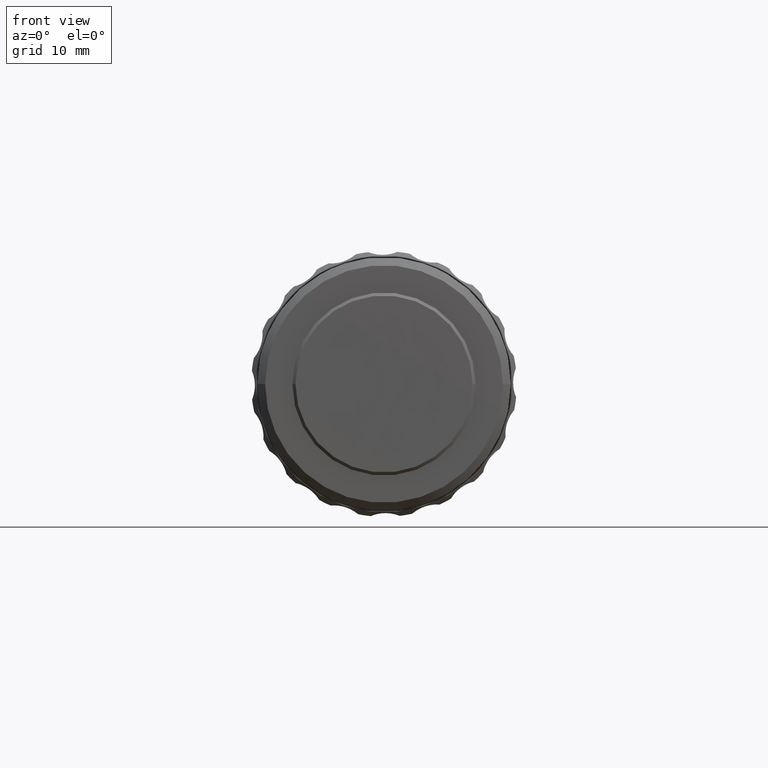
[diagram: clean part render]
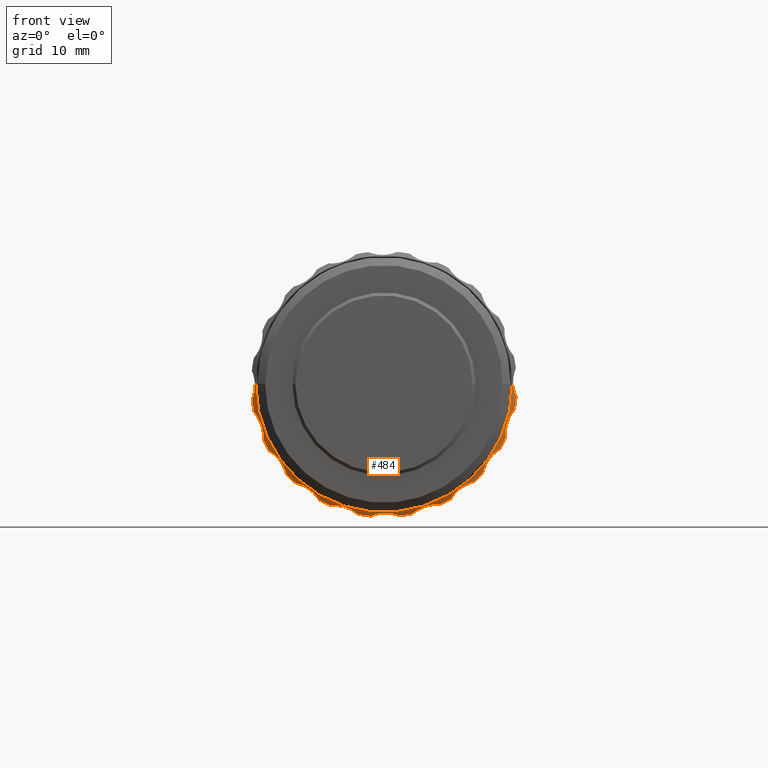
[diagram: same view with one face highlighted and labeled with its STEP entity id]
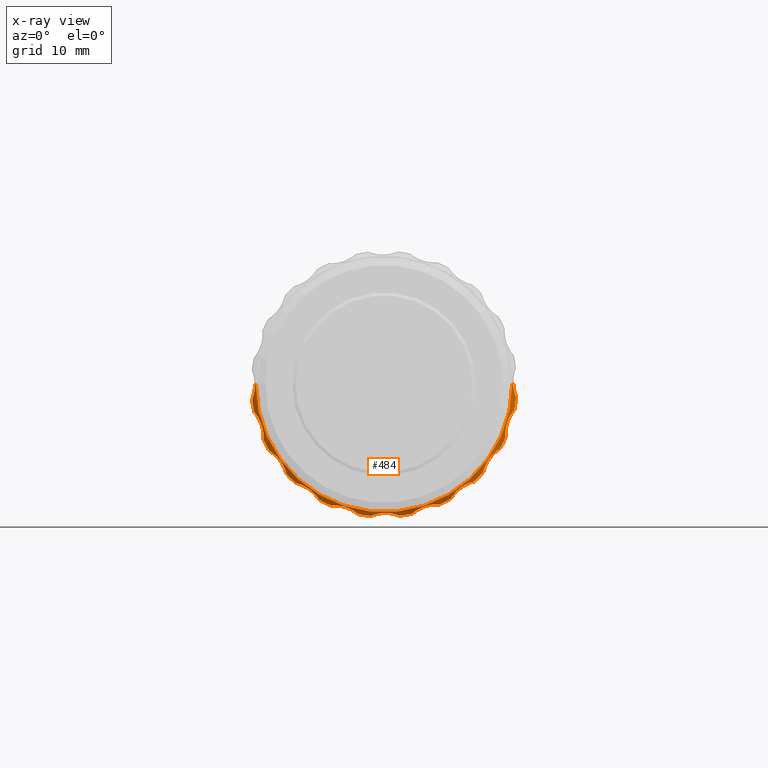
[diagram: x-ray of the same camera — body ghosted, the highlighted face saturated]
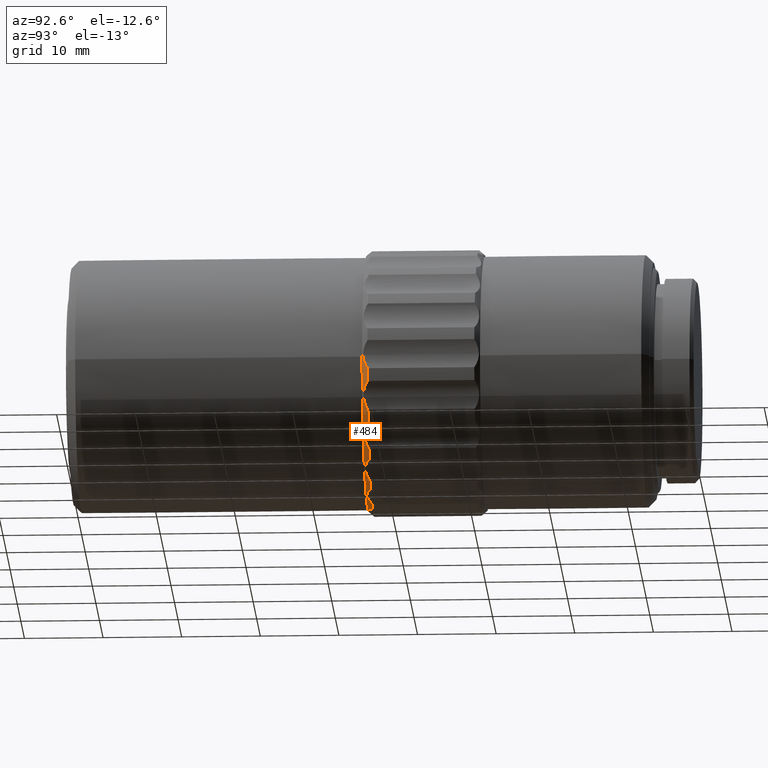
[diagram: same view with one face highlighted and labeled with its STEP entity id]
A machine part, front view. The second image highlights one B-rep face of the part: STEP entity #484.
The next image is the same camera in x-ray: the body ghosted, the highlighted face saturated — about 0% of this face is hidden behind the body in this view.
A second angle (auxiliary view) of the same face is appended — the face is thin or edge-on in the first view.
In plain terms, the highlighted conical surface has half-angle 39.278 deg.
Its self-contained STEP definition (entity closure, byte-faithful):
#3 = B_SPLINE_CURVE_WITH_KNOTS ( 'NONE', 3,
 ( #2066, #1616, #2052, #2725 ),
 .UNSPECIFIED., .F., .F.,
 ( 4, 4 ),
 ( 0.003489259547787179096, 0.003967775136804206626 ),
 .UNSPECIFIED. ) ;
#12 = DIRECTION ( 'NONE',  ( 9.536353044915926586E-06, 0.9999999999545290397, -0.000000000000000000 ) ) ;
#13 = CARTESIAN_POINT ( 'NONE',  ( 1343.003373764331855, 987.3260583072977852, -16.78831324289142302 ) ) ;
#22 = VERTEX_POINT ( 'NONE', #384 ) ;
#31 = ORIENTED_EDGE ( 'NONE', *, *, #1434, .F. ) ;
#37 = CARTESIAN_POINT ( 'NONE',  ( 1328.383016225962592, 986.6262031915217676, -1.347618331208670883E-09 ) ) ;
#51 = DIRECTION ( 'NONE',  ( -0.9999999999545290397, 9.536353044709597831E-06, 0.000000000000000000 ) ) ;
#66 = AXIS2_PLACEMENT_3D ( 'NONE', #2667, #2034, #51 ) ;
#89 = VERTEX_POINT ( 'NONE', #2845 ) ;
#94 = CARTESIAN_POINT ( 'NONE',  ( 1329.360300571564949, 987.3261884124603966, -7.063553779491797968 ) ) ;
#98 = CARTESIAN_POINT ( 'NONE',  ( 1361.180054231900385, 986.8878305635548713, -0.7487161181173951352 ) ) ;
#112 = CARTESIAN_POINT ( 'NONE',  ( 1361.366660323947144, 987.1692579168167185, -1.434701123741485063 ) ) ;
#120 = CARTESIAN_POINT ( 'NONE',  ( 1344.682622373049298, 987.3260422933902873, -1.347618331208670883E-09 ) ) ;
#127 = AXIS2_PLACEMENT_3D ( 'NONE', #729, #702, #2001 ) ;
#131 = CARTESIAN_POINT ( 'NONE',  ( 1343.551038075614088, 987.0154436543298289, -16.58231825963666850 ) ) ;
#134 = CARTESIAN_POINT ( 'NONE',  ( 1359.403392205781074, 987.3259019109319752, -8.244165993027181116 ) ) ;
#135 = CARTESIAN_POINT ( 'NONE',  ( 1361.098714545652228, 986.7683360566226156, -0.1534100661868615101 ) ) ;
#152 = CARTESIAN_POINT ( 'NONE',  ( 1329.231697122623018, 986.7575281358547272, -5.529102730537641008 ) ) ;
#160 = CARTESIAN_POINT ( 'NONE',  ( 1336.438456381744572, 987.3261209126677613, -14.72076983474860690 ) ) ;
#175 = CARTESIAN_POINT ( 'NONE',  ( 1358.920383795255930, 987.0150307511295296, -8.575150046817855198 ) ) ;
#180 = ORIENTED_EDGE ( 'NONE', *, *, #505, .F. ) ;
#184 = CARTESIAN_POINT ( 'NONE',  ( 1341.171003137353637, 987.1568039596038489, -16.36297471690903649 ) ) ;
#199 = CARTESIAN_POINT ( 'NONE',  ( 1341.390922634196613, 987.3260736842011056, -16.54787147216184451 ) ) ;
#213 = VECTOR ( 'NONE', #1508, 1000.000000000000000 ) ;
#222 = CARTESIAN_POINT ( 'NONE',  ( 1344.682622373049298, 987.3260422933902873, -1.347618331208670883E-09 ) ) ;
#241 = CARTESIAN_POINT ( 'NONE',  ( 1360.359569228805867, 986.7552170746745333, -4.836314371760460418 ) ) ;
#257 = ORIENTED_EDGE ( 'NONE', *, *, #2357, .F. ) ;
#259 = DIRECTION ( 'NONE',  ( -0.9999999999545290397, 9.536353044709597831E-06, 0.000000000000000000 ) ) ;
#273 = ORIENTED_EDGE ( 'NONE', *, *, #1242, .F. ) ;
#277 = CARTESIAN_POINT ( 'NONE',  ( 1331.860345375748466, 986.8125576277218443, -10.31277807814915803 ) ) ;
#328 = DIRECTION ( 'NONE',  ( 9.536353044915926586E-06, 0.9999999999545290397, -0.000000000000000000 ) ) ;
#332 = DIRECTION ( 'NONE',  ( -0.9999999999545290397, 9.536353044709597831E-06, 0.000000000000000000 ) ) ;
#334 = CARTESIAN_POINT ( 'NONE',  ( 1348.273436139540308, 987.3260080501224820, -16.48555106521985181 ) ) ;
#339 = CARTESIAN_POINT ( 'NONE',  ( 1336.107476656255812, 987.0152523784178129, -14.23777278966668192 ) ) ;
#342 = EDGE_CURVE ( 'NONE', #426, #1531, #3, .T. ) ;
#368 = VERTEX_POINT ( 'NONE', #37 ) ;
#372 = CARTESIAN_POINT ( 'NONE',  ( 1328.168125738299977, 986.9427331720864913, -1.217442321723410048 ) ) ;
#374 = AXIS2_PLACEMENT_3D ( 'NONE', #120, #328, #2095 ) ;
#379 = B_SPLINE_CURVE_WITH_KNOTS ( 'NONE', 3,
 ( #2502, #135, #2087, #2075, #98, #1020, #112, #995 ),
 .UNSPECIFIED., .F., .F.,
 ( 4, 2, 2, 4 ),
 ( 0.002132695306749530714, 0.002591466401335903915, 0.003050237495922277116, 0.003967779685095165765 ),
 .UNSPECIFIED. ) ;
#381 = CARTESIAN_POINT ( 'NONE',  ( 1336.286436346562596, 987.1568501784311138, -14.47696368615069140 ) ) ;
#384 = CARTESIAN_POINT ( 'NONE',  ( 1359.403392205781074, 987.3259019109319752, -8.244165993027181116 ) ) ;
#394 = CARTESIAN_POINT ( 'NONE',  ( 1357.277615524593784, 987.3259221830890056, -11.22646359788836001 ) ) ;
#421 = CARTESIAN_POINT ( 'NONE',  ( 1328.128884045932182, 987.0063746107667839, -1.380522343862485624 ) ) ;
#426 = VERTEX_POINT ( 'NONE', #795 ) ;
#453 = AXIS2_PLACEMENT_3D ( 'NONE', #1220, #1005, #2553 ) ;
#459 = CARTESIAN_POINT ( 'NONE',  ( 1354.715702748854028, 986.7572839311060306, -12.98611048708691840 ) ) ;
#461 = CIRCLE ( 'NONE', #698, 16.87208752307592263 ) ;
#466 = CARTESIAN_POINT ( 'NONE',  ( 1331.298405482498765, 986.7573345383480046, -9.495268198041982188 ) ) ;
#480 = CARTESIAN_POINT ( 'NONE',  ( 1344.682622373049298, 987.3260422933902873, -1.347618331208670883E-09 ) ) ;
#484 = ADVANCED_FACE ( 'NONE', ( #2548 ), #2578, .T. ) ;
#490 = B_SPLINE_CURVE_WITH_KNOTS ( 'NONE', 3,
 ( #687, #674, #2005, #277, #2255, #466, #1362, #1571, #656, #1095 ),
 .UNSPECIFIED., .F., .F.,
 ( 4, 2, 2, 2, 4 ),
 ( 9.327381203600247724E-07, 0.0009925017120032380690, 0.001984070685886115803, 0.002975639659768993753, 0.003967208633651872138 ),
 .UNSPECIFIED. ) ;
#505 = EDGE_CURVE ( 'NONE', #1152, #2049, #2065, .T. ) ;
#518 = CARTESIAN_POINT ( 'NONE',  ( 1329.376430616896641, 987.0153177561819575, -6.478260974581093734 ) ) ;
#527 = CIRCLE ( 'NONE', #1166, 16.87208752307592263 ) ;
#533 = CARTESIAN_POINT ( 'NONE',  ( 1329.380619194500468, 987.1569154964095105, -6.776955364573026941 ) ) ;
#542 = ORIENTED_EDGE ( 'NONE', *, *, #1139, .T. ) ;
#552 = DIRECTION ( 'NONE',  ( 9.536353044915926586E-06, 0.9999999999545290397, -0.000000000000000000 ) ) ;
#562 = CARTESIAN_POINT ( 'NONE',  ( 1343.003373764331855, 987.3260583072977852, -16.78831324289142302 ) ) ;
#565 = CARTESIAN_POINT ( 'NONE',  ( 1334.601554761373109, 986.8131578255171235, -13.00586263102062112 ) ) ;
#570 = CARTESIAN_POINT ( 'NONE',  ( 1348.730638280801486, 987.0153950885958238, -16.12040075429935726 ) ) ;
#571 = VERTEX_POINT ( 'NONE', #1928 ) ;
#575 = B_SPLINE_CURVE_WITH_KNOTS ( 'NONE', 3,
 ( #160, #381, #339, #1662, #589, #1905, #565, #1261, #2110, #825 ),
 .UNSPECIFIED., .F., .F.,
 ( 4, 2, 2, 2, 4 ),
 ( 1.009912317079941867E-06, 0.0009925797777089614103, 0.001984149643100843134, 0.002975719508492724423, 0.003967289373884606146 ),
 .UNSPECIFIED. ) ;
#583 = CARTESIAN_POINT ( 'NONE',  ( 1350.211719881572435, 986.7573270966613563, -15.45091911597353374 ) ) ;
#585 = CARTESIAN_POINT ( 'NONE',  ( 1328.272691153960068, 986.7611028646811064, -1.347626919665150214E-09 ) ) ;
#589 = CARTESIAN_POINT ( 'NONE',  ( 1335.432485644747885, 986.7574687245626137, -13.55496093032529004 ) ) ;
#597 = CARTESIAN_POINT ( 'NONE',  ( 1339.113986763431512, 986.8131155041849070, -15.48452966558741828 ) ) ;
#600 = CARTESIAN_POINT ( 'NONE',  ( 1345.166509773662483, 986.7573754466903893, -16.40328422754391724 ) ) ;
#611 = LINE ( 'NONE', #1711, #213 ) ;
#612 = CIRCLE ( 'NONE', #374, 16.87208752307592263 ) ;
#627 = CARTESIAN_POINT ( 'NONE',  ( 1338.482205226863925, 987.0154911807887856, -15.42104398317729874 ) ) ;
#642 = VECTOR ( 'NONE', #1609, 1000.000000000000000 ) ;
#656 = CARTESIAN_POINT ( 'NONE',  ( 1330.360062834469545, 987.1569126032092072, -8.656955702435499944 ) ) ;
#674 = CARTESIAN_POINT ( 'NONE',  ( 1332.223746929251092, 987.1568886113703911, -11.17384646736683074 ) ) ;
#680 = CARTESIAN_POINT ( 'NONE',  ( 1353.192004644613917, 987.3259611449167323, -14.56906828782804553 ) ) ;
#682 = ORIENTED_EDGE ( 'NONE', *, *, #690, .F. ) ;
#687 = CARTESIAN_POINT ( 'NONE',  ( 1332.292986537004253, 987.3261604453316522, -11.45269668040825195 ) ) ;
#690 = EDGE_CURVE ( 'NONE', #1249, #2256, #461, .T. ) ;
#696 = CARTESIAN_POINT ( 'NONE',  ( 1344.682622373049298, 987.3260422933902873, -1.347618331208670883E-09 ) ) ;
#698 = AXIS2_PLACEMENT_3D ( 'NONE', #696, #2044, #1122 ) ;
#702 = DIRECTION ( 'NONE',  ( 9.536353044915926586E-06, 0.9999999999545290397, -0.000000000000000000 ) ) ;
#711 = CARTESIAN_POINT ( 'NONE',  ( 1327.927470220947271, 987.3262020764366298, -1.982981020096498570 ) ) ;
#712 = ORIENTED_EDGE ( 'NONE', *, *, #1697, .F. ) ;
#720 = EDGE_CURVE ( 'NONE', #1706, #932, #1334, .T. ) ;
#725 = DIRECTION ( 'NONE',  ( -0.9999999999545290397, 9.536353044709597831E-06, 0.000000000000000000 ) ) ;
#729 = CARTESIAN_POINT ( 'NONE',  ( 1344.682615697654455, 986.6260477527865760, -1.347618331208670883E-09 ) ) ;
#734 = CARTESIAN_POINT ( 'NONE',  ( 1336.438456381744572, 987.3261209126677613, -14.72076983474860690 ) ) ;
#736 = CIRCLE ( 'NONE', #1231, 16.87208752307592263 ) ;
#751 = AXIS2_PLACEMENT_3D ( 'NONE', #1226, #2753, #988 ) ;
#752 = EDGE_CURVE ( 'NONE', #1766, #996, #1873, .T. ) ;
#795 = CARTESIAN_POINT ( 'NONE',  ( 1360.111504372713171, 987.1018801498815947, -6.361459841903545076 ) ) ;
#803 = CARTESIAN_POINT ( 'NONE',  ( 1333.456158777019027, 987.3261493529106474, -12.59499315346491777 ) ) ;
#825 = CARTESIAN_POINT ( 'NONE',  ( 1333.456158777019027, 987.3261493529106474, -12.59499315346491777 ) ) ;
#828 = B_SPLINE_CURVE_WITH_KNOTS ( 'NONE', 3,
 ( #904, #1339, #2247, #2027, #2216, #1815, #2691, #241, #1123, #1997, #1786, #1842, #2512, #965, #1018, #1458 ),
 .UNSPECIFIED., .F., .F.,
 ( 4, 2, 2, 2, 2, 2, 2, 4 ),
 ( 1.471397044919114264E-06, 0.0008734184347307200015, 0.001309391953573463274, 0.001745365472416206438, 0.002181338991258949169, 0.002617312510101692767, 0.003053286028944435498, 0.003489259547787179096 ),
 .UNSPECIFIED. ) ;
#829 = CARTESIAN_POINT ( 'NONE',  ( 1354.995396361395251, 986.8123377744556137, -12.82227212075760825 ) ) ;
#836 = CARTESIAN_POINT ( 'NONE',  ( 1328.251732886690661, 986.8042595238923695, -0.7083460147921863959 ) ) ;
#852 = ORIENTED_EDGE ( 'NONE', *, *, #2308, .F. ) ;
#857 = ORIENTED_EDGE ( 'NONE', *, *, #2248, .F. ) ;
#862 = AXIS2_PLACEMENT_3D ( 'NONE', #480, #2032, #259 ) ;
#904 = CARTESIAN_POINT ( 'NONE',  ( 1361.230493843110708, 987.3258844870458688, -3.291699740351489822 ) ) ;
#910 = AXIS2_PLACEMENT_3D ( 'NONE', #222, #12, #2212 ) ;
#925 = LINE ( 'NONE', #1830, #642 ) ;
#932 = VERTEX_POINT ( 'NONE', #1937 ) ;
#940 = B_SPLINE_CURVE_WITH_KNOTS ( 'NONE', 3,
 ( #1320, #2550, #2331, #421, #372, #1915, #836, #1944, #2577, #585 ),
 .UNSPECIFIED., .F., .F.,
 ( 4, 2, 2, 2, 4 ),
 ( 8.514621640060353123E-07, 0.0005336551467486908484, 0.001066458831333375783, 0.001599262515918060609, 0.002132066200502745219 ),
 .UNSPECIFIED. ) ;
#960 = EDGE_CURVE ( 'NONE', #1211, #1497, #1832, .T. ) ;
#965 = CARTESIAN_POINT ( 'NONE',  ( 1360.116915459094798, 986.9856873487743769, -6.095567953888948232 ) ) ;
#978 = CARTESIAN_POINT ( 'NONE',  ( 1344.497396697179283, 986.7572092855529036, -16.40923364181766431 ) ) ;
#985 = CARTESIAN_POINT ( 'NONE',  ( 1344.682622373049298, 987.3260422933902873, -1.347618331208670883E-09 ) ) ;
#988 = DIRECTION ( 'NONE',  ( -0.9999999999545290397, 9.536353044709597831E-06, 0.000000000000000000 ) ) ;
#995 = CARTESIAN_POINT ( 'NONE',  ( 1361.470935613829624, 987.3258821941082033, -1.679248610141278686 ) ) ;
#996 = VERTEX_POINT ( 'NONE', #13 ) ;
#1005 = DIRECTION ( 'NONE',  ( 9.536353044915926586E-06, 0.9999999999545290397, -0.000000000000000000 ) ) ;
#1018 = CARTESIAN_POINT ( 'NONE',  ( 1360.111503788045638, 987.0405708255335639, -6.229916568731749926 ) ) ;
#1020 = CARTESIAN_POINT ( 'NONE',  ( 1361.279051081359967, 987.0366489472307876, -1.173723834777427033 ) ) ;
#1047 = CARTESIAN_POINT ( 'NONE',  ( 1355.573672416084719, 987.0150632692193540, -12.55516285468781312 ) ) ;
#1095 = CARTESIAN_POINT ( 'NONE',  ( 1330.113554087230568, 987.3261812291691513, -8.509382273298479404 ) ) ;
#1097 = EDGE_CURVE ( 'NONE', #2572, #368, #2607, .T. ) ;
#1122 = DIRECTION ( 'NONE',  ( -0.9999999999545290397, 9.536353044709597831E-06, 0.000000000000000000 ) ) ;
#1123 = CARTESIAN_POINT ( 'NONE',  ( 1360.314349882278520, 986.7540939835621430, -4.977528649041003561 ) ) ;
#1124 = EDGE_CURVE ( 'NONE', #2227, #2467, #2752, .T. ) ;
#1139 = EDGE_CURVE ( 'NONE', #368, #89, #925, .T. ) ;
#1152 = VERTEX_POINT ( 'NONE', #2707 ) ;
#1160 = CARTESIAN_POINT ( 'NONE',  ( 1330.113554087230568, 987.3261812291691513, -8.509382273298479404 ) ) ;
#1165 = ORIENTED_EDGE ( 'NONE', *, *, #1612, .F. ) ;
#1166 = AXIS2_PLACEMENT_3D ( 'NONE', #2073, #552, #1869 ) ;
#1171 = CIRCLE ( 'NONE', #66, 16.87208752307592263 ) ;
#1181 = B_SPLINE_CURVE_WITH_KNOTS ( 'NONE', 3,
 ( #199, #184, #2563, #2384, #1957, #1480, #597, #627, #1468, #2356 ),
 .UNSPECIFIED., .F., .F.,
 ( 4, 2, 2, 2, 4 ),
 ( 1.102106901683554048E-06, 0.0009926730868204398494, 0.001984244066739196226, 0.002975815046657952819, 0.003967386026576709412 ),
 .UNSPECIFIED. ) ;
#1187 = ORIENTED_EDGE ( 'NONE', *, *, #2282, .F. ) ;
#1189 = ORIENTED_EDGE ( 'NONE', *, *, #1645, .F. ) ;
#1193 = CARTESIAN_POINT ( 'NONE',  ( 1328.882213950297228, 986.8132114258821730, -4.596467324283610267 ) ) ;
#1205 = CARTESIAN_POINT ( 'NONE',  ( 1328.562222746065800, 987.0155841886484041, -4.048024541126191700 ) ) ;
#1211 = VERTEX_POINT ( 'NONE', #2543 ) ;
#1220 = CARTESIAN_POINT ( 'NONE',  ( 1344.682622373049298, 987.3260422933902873, -1.347618331208670883E-09 ) ) ;
#1226 = CARTESIAN_POINT ( 'NONE',  ( 1344.682622373049298, 987.3260422933902873, -1.347618331208670883E-09 ) ) ;
#1227 = ORIENTED_EDGE ( 'NONE', *, *, #2696, .F. ) ;
#1231 = AXIS2_PLACEMENT_3D ( 'NONE', #2614, #1951, #1324 ) ;
#1242 = EDGE_CURVE ( 'NONE', #2295, #1706, #379, .T. ) ;
#1249 = VERTEX_POINT ( 'NONE', #803 ) ;
#1261 = CARTESIAN_POINT ( 'NONE',  ( 1334.020311905042263, 987.0155330157471099, -12.75025149645843925 ) ) ;
#1275 = CARTESIAN_POINT ( 'NONE',  ( 1361.092542814230910, 986.7607898829899113, -1.347624554440093096E-09 ) ) ;
#1281 = CARTESIAN_POINT ( 'NONE',  ( 1329.360300571564949, 987.3261884124603966, -7.063553779491797968 ) ) ;
#1291 = CARTESIAN_POINT ( 'NONE',  ( 1353.936699501743078, 986.8129764079568531, -13.60670174686153899 ) ) ;
#1304 = ORIENTED_EDGE ( 'NONE', *, *, #1097, .T. ) ;
#1320 = CARTESIAN_POINT ( 'NONE',  ( 1327.927470220947271, 987.3262020764366298, -1.982981020096498570 ) ) ;
#1323 = CARTESIAN_POINT ( 'NONE',  ( 1353.339574327817218, 987.1566959076059220, -14.32256148735321233 ) ) ;
#1324 = DIRECTION ( 'NONE',  ( -0.9999999999545290397, 9.536353044709597831E-06, 0.000000000000000000 ) ) ;
#1332 = VERTEX_POINT ( 'NONE', #2125 ) ;
#1334 = CIRCLE ( 'NONE', #2204, 16.87208752307592263 ) ;
#1338 = CARTESIAN_POINT ( 'NONE',  ( 1354.177869877533340, 986.7571174181559854, -13.38422361357714330 ) ) ;
#1339 = CARTESIAN_POINT ( 'NONE',  ( 1361.067903889741046, 987.1770372527122390, -3.485084021567157908 ) ) ;
#1362 = CARTESIAN_POINT ( 'NONE',  ( 1331.075926179030375, 986.8131908778917705, -9.254092347668416707 ) ) ;
#1370 = CARTESIAN_POINT ( 'NONE',  ( 1344.682622373049298, 987.3260422933902873, -1.347618331208670883E-09 ) ) ;
#1405 = CARTESIAN_POINT ( 'NONE',  ( 1346.665603391707009, 987.3260233829832941, -16.75515215421152959 ) ) ;
#1409 = CARTESIAN_POINT ( 'NONE',  ( 1328.385912502164047, 987.1569312336646362, -3.807340580776741756 ) ) ;
#1412 = CARTESIAN_POINT ( 'NONE',  ( 1346.399311797962355, 987.1567544790607371, -16.64726349459767363 ) ) ;
#1420 = EDGE_LOOP ( 'NONE', ( #2179, #1304, #542, #1643, #2284, #257, #852, #1189, #682, #857, #2632, #1165, #31, #1979, #712, #180, #2208, #1977, #1227, #1187, #1559, #1998, #1747, #1939, #273 ) ) ;
#1434 = EDGE_CURVE ( 'NONE', #996, #1793, #1784, .T. ) ;
#1435 = CARTESIAN_POINT ( 'NONE',  ( 1345.489088290697737, 986.8124281596278706, -16.43513521831824420 ) ) ;
#1445 = CARTESIAN_POINT ( 'NONE',  ( 1343.267654597691035, 987.1567908693560867, -16.67562456023906847 ) ) ;
#1447 = CARTESIAN_POINT ( 'NONE',  ( 1357.432868313924928, 987.0153134914193060, -10.66231528489239899 ) ) ;
#1458 = CARTESIAN_POINT ( 'NONE',  ( 1360.111504372713171, 987.1018801498815947, -6.361459841903545076 ) ) ;
#1468 = CARTESIAN_POINT ( 'NONE',  ( 1338.183857505199740, 987.1568388093048725, -15.42221272957004530 ) ) ;
#1480 = CARTESIAN_POINT ( 'NONE',  ( 1339.435734121264431, 986.7572573194255483, -15.54887353030678909 ) ) ;
#1497 = VERTEX_POINT ( 'NONE', #1800 ) ;
#1508 = DIRECTION ( 'NONE',  ( 0.6330896548073171592, 0.7740784772721380769, 7.753021790952042238E-17 ) ) ;
#1510 = EDGE_CURVE ( 'NONE', #2642, #89, #940, .T. ) ;
#1527 = CIRCLE ( 'NONE', #1763, 16.87208752307592263 ) ;
#1531 = VERTEX_POINT ( 'NONE', #2792 ) ;
#1556 = EDGE_CURVE ( 'NONE', #2572, #2295, #611, .T. ) ;
#1559 = ORIENTED_EDGE ( 'NONE', *, *, #2755, .F. ) ;
#1571 = CARTESIAN_POINT ( 'NONE',  ( 1330.602118934370765, 987.0155650640825797, -8.831376242582516412 ) ) ;
#1609 = DIRECTION ( 'NONE',  ( -0.6330748909208815389, 0.7740905518642595684, 0.000000000000000000 ) ) ;
#1612 = EDGE_CURVE ( 'NONE', #1793, #2227, #1181, .T. ) ;
#1616 = CARTESIAN_POINT ( 'NONE',  ( 1360.111505014432169, 987.1691720063465709, -6.505839039544158986 ) ) ;
#1632 = CARTESIAN_POINT ( 'NONE',  ( 1328.197071309926287, 987.3261995054253930, -3.590813768000815198 ) ) ;
#1642 = CARTESIAN_POINT ( 'NONE',  ( 1351.746176150871179, 987.3259749328477710, -15.32232180352943729 ) ) ;
#1643 = ORIENTED_EDGE ( 'NONE', *, *, #1510, .F. ) ;
#1645 = EDGE_CURVE ( 'NONE', #2256, #1668, #490, .T. ) ;
#1662 = CARTESIAN_POINT ( 'NONE',  ( 1335.674735835202000, 986.8125214097927937, -13.77033498008239398 ) ) ;
#1668 = VERTEX_POINT ( 'NONE', #1160 ) ;
#1697 = EDGE_CURVE ( 'NONE', #2049, #1766, #1171, .T. ) ;
#1706 = VERTEX_POINT ( 'NONE', #2203 ) ;
#1711 = CARTESIAN_POINT ( 'NONE',  ( 1361.554709895357973, 987.3258813952070341, -1.347616264973873039E-09 ) ) ;
#1731 = B_SPLINE_CURVE_WITH_KNOTS ( 'NONE', 3,
 ( #134, #2360, #175, #1920, #2528, #1884, #2797, #1447, #2322, #394 ),
 .UNSPECIFIED., .F., .F.,
 ( 4, 2, 2, 2, 4 ),
 ( 1.437393804387209006E-06, 0.0009930127834990782644, 0.001984588173193769026, 0.002976163562888459787, 0.003967738952583151416 ),
 .UNSPECIFIED. ) ;
#1747 = ORIENTED_EDGE ( 'NONE', *, *, #2651, .F. ) ;
#1763 = AXIS2_PLACEMENT_3D ( 'NONE', #985, #1861, #332 ) ;
#1766 = VERTEX_POINT ( 'NONE', #1405 ) ;
#1772 = CARTESIAN_POINT ( 'NONE',  ( 1360.982215169346091, 986.6258923140514980, -1.347616335083438800E-09 ) ) ;
#1784 = CIRCLE ( 'NONE', #910, 16.87208752307592263 ) ;
#1786 = CARTESIAN_POINT ( 'NONE',  ( 1360.207503761573889, 986.7929084027060753, -5.398686277354046936 ) ) ;
#1788 = CARTESIAN_POINT ( 'NONE',  ( 1348.273436139540308, 987.3260080501224820, -16.48555106521985181 ) ) ;
#1793 = VERTEX_POINT ( 'NONE', #2089 ) ;
#1800 = CARTESIAN_POINT ( 'NONE',  ( 1353.192004644613917, 987.3259611449167323, -14.56906828782804553 ) ) ;
#1815 = CARTESIAN_POINT ( 'NONE',  ( 1360.516202356796157, 986.7999796405214283, -4.433444145279089810 ) ) ;
#1821 = EDGE_CURVE ( 'NONE', #571, #2642, #1527, .T. ) ;
#1826 = DIRECTION ( 'NONE',  ( 9.536353044915926586E-06, 0.9999999999545290397, -0.000000000000000000 ) ) ;
#1830 = CARTESIAN_POINT ( 'NONE',  ( 1327.810534850740623, 987.3262031915735406, -1.347618331208670883E-09 ) ) ;
#1832 = B_SPLINE_CURVE_WITH_KNOTS ( 'NONE', 3,
 ( #1950, #2826, #1047, #829, #459, #1338, #1291, #2184, #1323, #680 ),
 .UNSPECIFIED., .F., .F.,
 ( 4, 2, 2, 2, 4 ),
 ( 1.376566605485981941E-06, 0.0009929510933332965500, 0.001984525620061107064, 0.002976100146788917579, 0.003967674673516727660 ),
 .UNSPECIFIED. ) ;
#1842 = CARTESIAN_POINT ( 'NONE',  ( 1360.158424117635150, 986.8517450935189572, -5.679034684006555977 ) ) ;
#1851 = CARTESIAN_POINT ( 'NONE',  ( 1329.301088367444208, 986.8125819067140583, -5.845734582589246386 ) ) ;
#1861 = DIRECTION ( 'NONE',  ( 9.536353044915926586E-06, 0.9999999999545290397, -0.000000000000000000 ) ) ;
#1869 = DIRECTION ( 'NONE',  ( -0.9999999999545290397, 9.536353044709597831E-06, 0.000000000000000000 ) ) ;
#1873 = B_SPLINE_CURVE_WITH_KNOTS ( 'NONE', 3,
 ( #2499, #1412, #2319, #1435, #600, #978, #2334, #131, #1445, #562 ),
 .UNSPECIFIED., .F., .F.,
 ( 4, 2, 2, 2, 4 ),
 ( 1.200296328829236139E-06, 0.0009927725047036367947, 0.001984344713078444247, 0.002975916921453251700, 0.003967489129828059152 ),
 .UNSPECIFIED. ) ;
#1877 = CARTESIAN_POINT ( 'NONE',  ( 1349.577190099085556, 986.7571610788705812, -15.66334627932680235 ) ) ;
#1884 = CARTESIAN_POINT ( 'NONE',  ( 1357.849090065660448, 986.7570825771820182, -9.794961001786857580 ) ) ;
#1894 = CARTESIAN_POINT ( 'NONE',  ( 1332.292986537004253, 987.3261604453316522, -11.45269668040825195 ) ) ;
#1905 = CARTESIAN_POINT ( 'NONE',  ( 1334.887671980849746, 986.7573004786046340, -13.16648371696482656 ) ) ;
#1915 = CARTESIAN_POINT ( 'NONE',  ( 1328.229744698328204, 986.8413453403182984, -0.8800328784743410848 ) ) ;
#1920 = CARTESIAN_POINT ( 'NONE',  ( 1358.452953041033652, 986.8123048753939202, -9.007881581868556253 ) ) ;
#1924 = VERTEX_POINT ( 'NONE', #1281 ) ;
#1928 = CARTESIAN_POINT ( 'NONE',  ( 1328.197071309926287, 987.3261995054253930, -3.590813768000815198 ) ) ;
#1931 = B_SPLINE_CURVE_WITH_KNOTS ( 'NONE', 3,
 ( #94, #533, #518, #1851, #152, #2128, #1193, #1205, #1409, #1632 ),
 .UNSPECIFIED., .F., .F.,
 ( 4, 2, 2, 2, 4 ),
 ( 8.781396689509973614E-07, 0.0009924465323215890620, 0.001984014924974227077, 0.002975583317626865308, 0.003967151710279503106 ),
 .UNSPECIFIED. ) ;
#1937 = CARTESIAN_POINT ( 'NONE',  ( 1361.230493843110708, 987.3258844870458688, -3.291699740351489822 ) ) ;
#1939 = ORIENTED_EDGE ( 'NONE', *, *, #720, .F. ) ;
#1944 = CARTESIAN_POINT ( 'NONE',  ( 1328.276854732753463, 986.7596678813293920, -0.3585195563942413233 ) ) ;
#1950 = CARTESIAN_POINT ( 'NONE',  ( 1356.135319051588340, 987.3259330764315109, -12.38963583795659140 ) ) ;
#1951 = DIRECTION ( 'NONE',  ( 9.536353044915926586E-06, 0.9999999999545290397, -0.000000000000000000 ) ) ;
#1957 = CARTESIAN_POINT ( 'NONE',  ( 1340.073932709720566, 986.7574242483375428, -15.74998159335855696 ) ) ;
#1977 = ORIENTED_EDGE ( 'NONE', *, *, #960, .F. ) ;
#1979 = ORIENTED_EDGE ( 'NONE', *, *, #752, .F. ) ;
#1997 = CARTESIAN_POINT ( 'NONE',  ( 1360.238511698260936, 986.7730810105532555, -5.258393647519045366 ) ) ;
#1998 = ORIENTED_EDGE ( 'NONE', *, *, #342, .F. ) ;
#2001 = DIRECTION ( 'NONE',  ( -0.9999999999545289286, 9.536353047715948153E-06, 0.000000000000000000 ) ) ;
#2005 = CARTESIAN_POINT ( 'NONE',  ( 1332.127461024349714, 987.0152910377199760, -10.89106353591088094 ) ) ;
#2027 = CARTESIAN_POINT ( 'NONE',  ( 1360.704865204824500, 986.9032817038596477, -4.053253064989045917 ) ) ;
#2032 = DIRECTION ( 'NONE',  ( 9.536353044915926586E-06, 0.9999999999545290397, -0.000000000000000000 ) ) ;
#2034 = DIRECTION ( 'NONE',  ( 9.536353044915926586E-06, 0.9999999999545290397, -0.000000000000000000 ) ) ;
#2044 = DIRECTION ( 'NONE',  ( 9.536353044915926586E-06, 0.9999999999545290397, -0.000000000000000000 ) ) ;
#2049 = VERTEX_POINT ( 'NONE', #1788 ) ;
#2052 = CARTESIAN_POINT ( 'NONE',  ( 1360.118031589984184, 987.2442119699641125, -6.646835634564650874 ) ) ;
#2065 = B_SPLINE_CURVE_WITH_KNOTS ( 'NONE', 3,
 ( #1642, #2521, #2342, #2328, #583, #1877, #2132, #570, #2533, #334 ),
 .UNSPECIFIED., .F., .F.,
 ( 4, 2, 2, 2, 4 ),
 ( 1.294868627369624951E-06, 0.0009928682991472894542, 0.001984441729667209015, 0.002976015160187125540, 0.003967588590707041632 ),
 .UNSPECIFIED. ) ;
#2066 = CARTESIAN_POINT ( 'NONE',  ( 1360.111504372713171, 987.1018801498815947, -6.361459841903545076 ) ) ;
#2073 = CARTESIAN_POINT ( 'NONE',  ( 1344.682622373049298, 987.3260422933902873, -1.347618331208670883E-09 ) ) ;
#2075 = CARTESIAN_POINT ( 'NONE',  ( 1361.152691967500004, 986.8469409343996404, -0.6013432361464600140 ) ) ;
#2087 = CARTESIAN_POINT ( 'NONE',  ( 1361.112180420903087, 986.7874317824898753, -0.3042849940476866077 ) ) ;
#2089 = CARTESIAN_POINT ( 'NONE',  ( 1341.390922634196613, 987.3260736842011056, -16.54787147216184451 ) ) ;
#2095 = DIRECTION ( 'NONE',  ( -0.9999999999545290397, 9.536353044709597831E-06, 0.000000000000000000 ) ) ;
#2110 = CARTESIAN_POINT ( 'NONE',  ( 1333.736204568827134, 987.1568807559374363, -12.65916780166013922 ) ) ;
#2124 = CARTESIAN_POINT ( 'NONE',  ( 1337.897687942958100, 987.3261069969203163, -15.44771834942434729 ) ) ;
#2125 = CARTESIAN_POINT ( 'NONE',  ( 1357.277615524593784, 987.3259221830890056, -11.22646359788836001 ) ) ;
#2128 = CARTESIAN_POINT ( 'NONE',  ( 1329.019276927905594, 986.7573561646131566, -4.894589912585351144 ) ) ;
#2132 = CARTESIAN_POINT ( 'NONE',  ( 1349.279073003890517, 986.8130201273359035, -15.80040963836864343 ) ) ;
#2179 = ORIENTED_EDGE ( 'NONE', *, *, #1556, .F. ) ;
#2184 = CARTESIAN_POINT ( 'NONE',  ( 1353.513990921708682, 987.0153502375242169, -14.08050691086097395 ) ) ;
#2203 = CARTESIAN_POINT ( 'NONE',  ( 1361.470935613829624, 987.3258821941082033, -1.679248610141278686 ) ) ;
#2204 = AXIS2_PLACEMENT_3D ( 'NONE', #1370, #1826, #725 ) ;
#2208 = ORIENTED_EDGE ( 'NONE', *, *, #2510, .F. ) ;
#2212 = DIRECTION ( 'NONE',  ( -0.9999999999545290397, 9.536353044709597831E-06, 0.000000000000000000 ) ) ;
#2216 = CARTESIAN_POINT ( 'NONE',  ( 1360.638182916947244, 986.8622802230189563, -4.178029206217912517 ) ) ;
#2227 = VERTEX_POINT ( 'NONE', #2124 ) ;
#2247 = CARTESIAN_POINT ( 'NONE',  ( 1360.915216950168769, 987.0497506750145931, -3.697299970668761038 ) ) ;
#2248 = EDGE_CURVE ( 'NONE', #2467, #1249, #575, .T. ) ;
#2255 = CARTESIAN_POINT ( 'NONE',  ( 1331.696505837455561, 986.7575045217486149, -10.03308609400060014 ) ) ;
#2256 = VERTEX_POINT ( 'NONE', #1894 ) ;
#2282 = EDGE_CURVE ( 'NONE', #22, #1332, #1731, .T. ) ;
#2284 = ORIENTED_EDGE ( 'NONE', *, *, #1821, .F. ) ;
#2295 = VERTEX_POINT ( 'NONE', #1275 ) ;
#2308 = EDGE_CURVE ( 'NONE', #1668, #1924, #2517, .T. ) ;
#2319 = CARTESIAN_POINT ( 'NONE',  ( 1346.113931306314043, 987.0151551729777566, -16.55894149927203429 ) ) ;
#2322 = CARTESIAN_POINT ( 'NONE',  ( 1357.341787596944869, 987.1566581812900267, -10.94642038852447286 ) ) ;
#2328 = CARTESIAN_POINT ( 'NONE',  ( 1350.528352999066556, 986.8123802553233190, -15.38152932388380911 ) ) ;
#2331 = CARTESIAN_POINT ( 'NONE',  ( 1328.037652007473525, 987.1524511076505632, -1.691187433539134588 ) ) ;
#2334 = CARTESIAN_POINT ( 'NONE',  ( 1344.171514560234982, 986.8130680566242745, -16.44746489391256716 ) ) ;
#2342 = CARTESIAN_POINT ( 'NONE',  ( 1351.160869795443432, 987.0151061420377800, -15.30618972803611832 ) ) ;
#2356 = CARTESIAN_POINT ( 'NONE',  ( 1337.897687942958100, 987.3261069969203163, -15.44771834942434729 ) ) ;
#2357 = EDGE_CURVE ( 'NONE', #1924, #571, #1931, .T. ) ;
#2360 = CARTESIAN_POINT ( 'NONE',  ( 1359.159586772159400, 987.1566336691266770, -8.396182961677070011 ) ) ;
#2384 = CARTESIAN_POINT ( 'NONE',  ( 1340.370880610948007, 986.8124767981404375, -15.87995548562408388 ) ) ;
#2467 = VERTEX_POINT ( 'NONE', #734 ) ;
#2499 = CARTESIAN_POINT ( 'NONE',  ( 1346.665603391707009, 987.3260233829832941, -16.75515215421152959 ) ) ;
#2502 = CARTESIAN_POINT ( 'NONE',  ( 1361.092542814230910, 986.7607898829899113, -1.347624554440093096E-09 ) ) ;
#2510 = EDGE_CURVE ( 'NONE', #1497, #1152, #736, .T. ) ;
#2512 = CARTESIAN_POINT ( 'NONE',  ( 1360.140295448782581, 986.8911893246201998, -5.820200908900019066 ) ) ;
#2517 = CIRCLE ( 'NONE', #453, 16.87208752307592263 ) ;
#2521 = CARTESIAN_POINT ( 'NONE',  ( 1351.459578892756554, 987.1567065802940988, -15.30200176281733171 ) ) ;
#2528 = CARTESIAN_POINT ( 'NONE',  ( 1358.237577234258879, 986.7572501754035557, -9.250131040880681610 ) ) ;
#2533 = CARTESIAN_POINT ( 'NONE',  ( 1348.489958633377682, 987.1567416287898595, -16.29671061773581897 ) ) ;
#2543 = CARTESIAN_POINT ( 'NONE',  ( 1356.135319051588340, 987.3259330764315109, -12.38963583795659140 ) ) ;
#2548 = FACE_OUTER_BOUND ( 'NONE', #1420, .T. ) ;
#2550 = CARTESIAN_POINT ( 'NONE',  ( 1327.985442121152573, 987.2352454019550123, -1.839893070429591715 ) ) ;
#2553 = DIRECTION ( 'NONE',  ( -0.9999999999545290397, 9.536353044709597831E-06, 0.000000000000000000 ) ) ;
#2563 = CARTESIAN_POINT ( 'NONE',  ( 1340.926885752925955, 987.0152055626002721, -16.19079021955290898 ) ) ;
#2572 = VERTEX_POINT ( 'NONE', #1772 ) ;
#2577 = CARTESIAN_POINT ( 'NONE',  ( 1328.279858819622405, 986.7523386215441406, -0.1781700516161423553 ) ) ;
#2578 = CONICAL_SURFACE ( 'NONE', #751, 16.87208752307592263, 0.6855285895067915192 ) ;
#2607 = CIRCLE ( 'NONE', #127, 16.29959947243284546 ) ;
#2614 = CARTESIAN_POINT ( 'NONE',  ( 1344.682622373049298, 987.3260422933902873, -1.347618331208670883E-09 ) ) ;
#2632 = ORIENTED_EDGE ( 'NONE', *, *, #1124, .F. ) ;
#2642 = VERTEX_POINT ( 'NONE', #711 ) ;
#2651 = EDGE_CURVE ( 'NONE', #932, #426, #828, .T. ) ;
#2667 = CARTESIAN_POINT ( 'NONE',  ( 1344.682622373049298, 987.3260422933902873, -1.347618331208670883E-09 ) ) ;
#2691 = CARTESIAN_POINT ( 'NONE',  ( 1360.460339987263296, 986.7782665511283540, -4.564989165291438944 ) ) ;
#2696 = EDGE_CURVE ( 'NONE', #1332, #1211, #527, .T. ) ;
#2707 = CARTESIAN_POINT ( 'NONE',  ( 1351.746176150871179, 987.3259749328477710, -15.32232180352943729 ) ) ;
#2725 = CARTESIAN_POINT ( 'NONE',  ( 1360.130340720423646, 987.3258949784944889, -6.784934431747172923 ) ) ;
#2752 = CIRCLE ( 'NONE', #862, 16.87208752307592263 ) ;
#2753 = DIRECTION ( 'NONE',  ( 9.536353044915926586E-06, 0.9999999999545290397, -0.000000000000000000 ) ) ;
#2755 = EDGE_CURVE ( 'NONE', #1531, #22, #612, .T. ) ;
#2792 = CARTESIAN_POINT ( 'NONE',  ( 1360.130340720423646, 987.3258949784944889, -6.784934431747172923 ) ) ;
#2797 = CARTESIAN_POINT ( 'NONE',  ( 1357.688473527311771, 986.8129411780156488, -10.08107580667667946 ) ) ;
#2826 = CARTESIAN_POINT ( 'NONE',  ( 1355.856470042323735, 987.1566649520046894, -12.45887313176945099 ) ) ;
#2845 = CARTESIAN_POINT ( 'NONE',  ( 1328.272691153960068, 986.7611028646811064, -1.347626919665150214E-09 ) ) ;